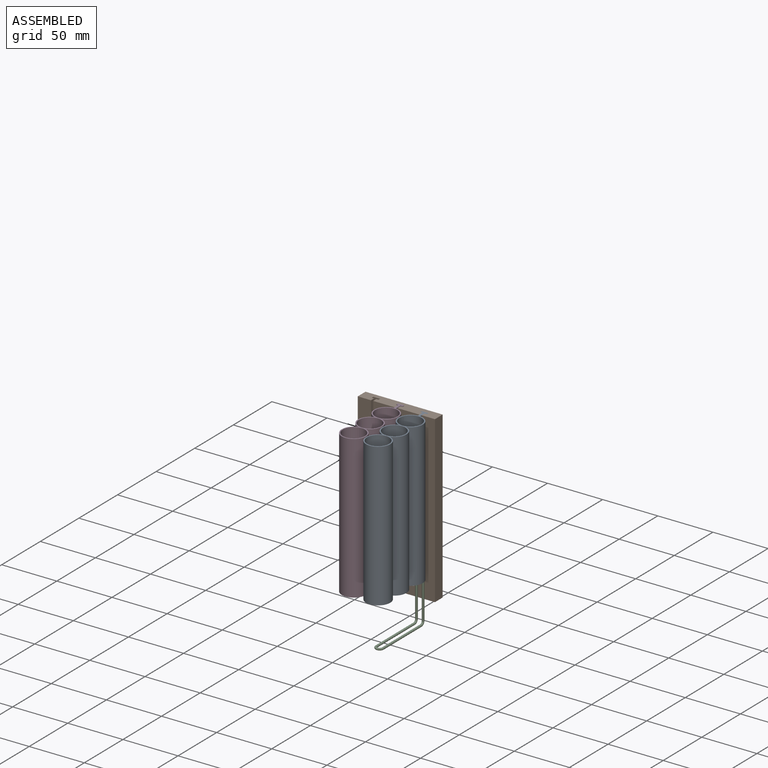
[diagram: assembled view]
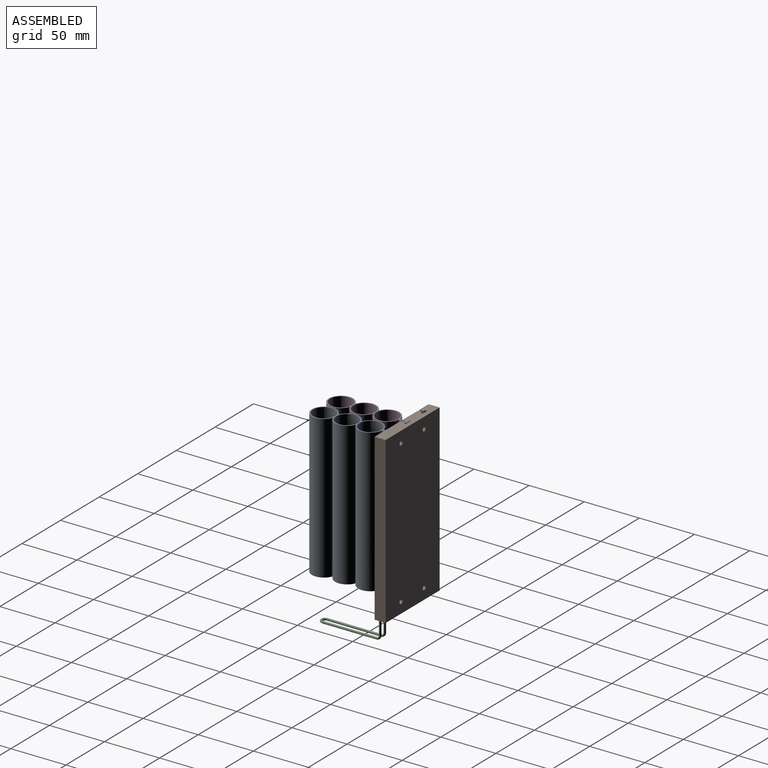
[diagram: assembled view, second angle]
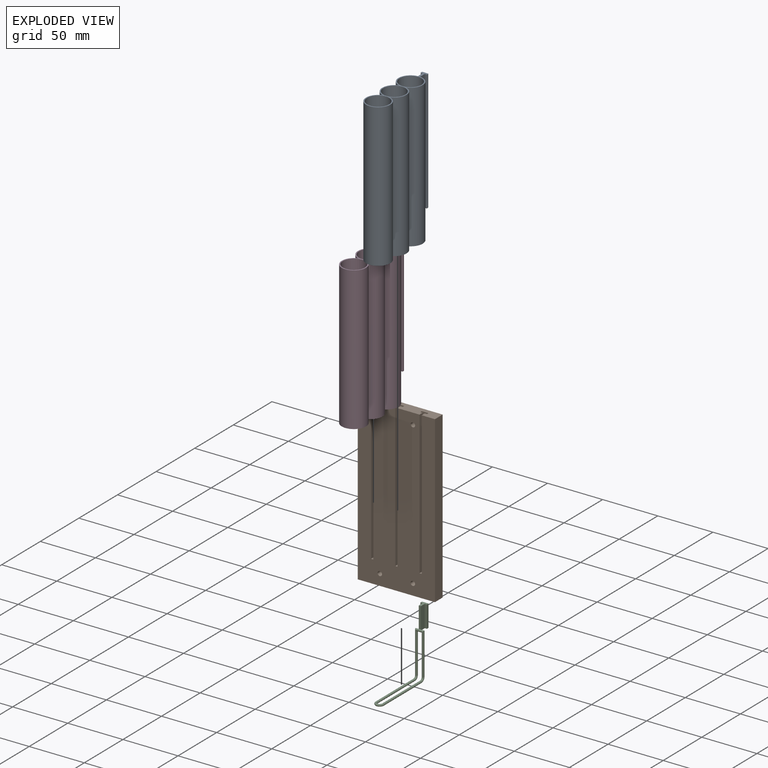
[diagram: exploded view]
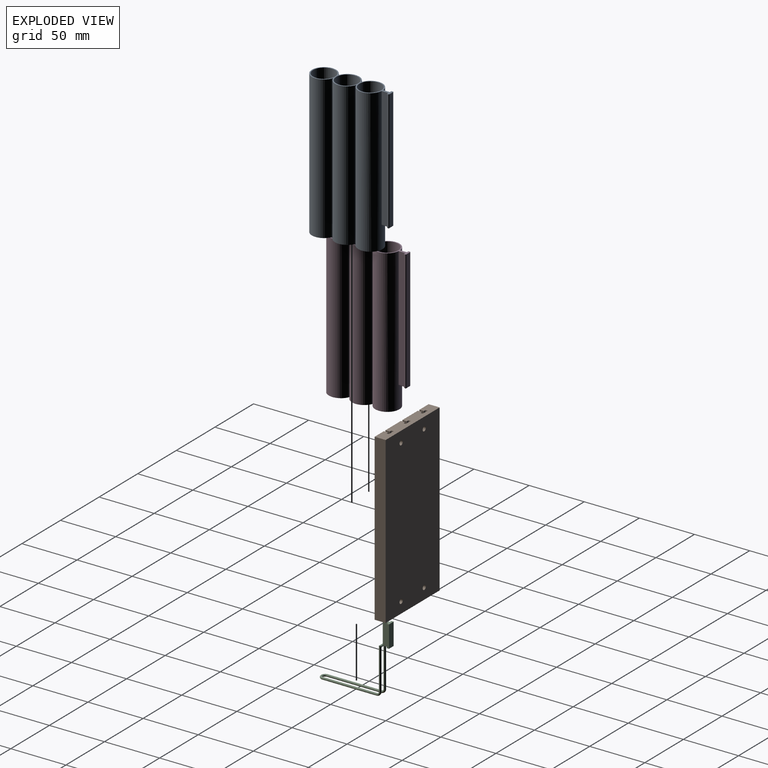
[diagram: exploded view, second angle]
ASSEMBLY  parts=4 mates=3
PART A: 32 faces, bbox 22x72x130 mm
  f0: cylinder r=10mm len=130mm, axis (0,0,1), area 8168.1mm2, adj f2,f3
  f1: cylinder r=11mm len=130mm, axis (0,0,1), area 7899.2mm2, adj f2,f3,f4,f6,f9,f10,f16,f17
  f2: plane 64x22mm, normal (0,0,-1), area 189.1mm2, adj f0,f1,f4,f5,f6,f7,f8
  f3: plane 72x22mm, normal (0,0,1), area 212.8mm2, adj f0,f1,f4,f5,f6,f7,f8,f9
  f4: cylinder r=11mm len=130mm, axis (0,0,1), area 3626.9mm2, adj f1,f2,f3,f8
  f5: cylinder r=10mm len=130mm, axis (0,0,1), area 8168.1mm2, adj f2,f3
  f6: cylinder r=11mm len=130mm, axis (0,0,1), area 3626.9mm2, adj f1,f2,f3,f8
  f7: cylinder r=10mm len=130mm, axis (0,0,1), area 8168.1mm2, adj f2,f3
  f8: cylinder r=11mm len=130mm, axis (0,0,1), area 8119.3mm2, adj f2,f3,f4,f6
  f9: plane 109.6x6.05mm, normal (-1,0,0), area 662.6mm2, adj f1,f3,f15,f26
  f10: plane 109.6x6.05mm, normal (1,0,0), area 662.6mm2, adj f1,f3,f11,f17
  f11: plane 109.6x1.6mm, normal (0,-1,0), area 175.4mm2, adj f3,f10,f18,f19
  f12: plane 109.6x1.2mm, normal (1,0,0), area 131.5mm2, adj f3,f19,f21,f22
  f13: plane 109.6x5.2mm, normal (0,1,0), area 569.9mm2, adj f3,f22,f24,f25
  f14: plane 109.6x1.2mm, normal (-1,0,0), area 131.5mm2, adj f3,f25,f29,f31
  f15: plane 109.6x1.6mm, normal (0,-1,0), area 175.4mm2, adj f3,f9,f28,f31
  f16: plane 7.62x5.2mm, normal (0,0,-1), area 13.9mm2, adj f1,f17,f18,f21,f24,f26,f28,f29
  f17: plane 6.45x0.4mm, normal (0.71,0,-0.71), area 3.5mm2, adj f1,f10,f16,f18
  f18: plane 2x0.4mm, normal (0,-0.71,-0.71), area 1mm2, adj f11,f16,f17,f20
  f19: plane 109.6x0.4mm, normal (0.71,-0.71,0), area 62mm2, adj f3,f11,f12,f20
  f20: plane 0.4x0.4mm, normal (0.58,-0.58,-0.58), area 0.1mm2, adj f18,f19,f21
  f21: plane 1.2x0.4mm, normal (0.71,0,-0.71), area 0.7mm2, adj f12,f16,f20,f23
  f22: plane 109.6x0.4mm, normal (0.71,0.71,0), area 62mm2, adj f3,f12,f13,f23
  f23: plane 0.4x0.4mm, normal (0.58,0.58,-0.58), area 0.1mm2, adj f21,f22,f24
  f24: plane 5.2x0.4mm, normal (0,0.71,-0.71), area 2.9mm2, adj f13,f16,f23,f27
  f25: plane 109.6x0.4mm, normal (-0.71,0.71,0), area 62mm2, adj f3,f13,f14,f27
  f26: plane 6.45x0.4mm, normal (-0.71,0,-0.71), area 3.5mm2, adj f1,f9,f16,f28
  f27: plane 0.4x0.4mm, normal (-0.58,0.58,-0.58), area 0.1mm2, adj f24,f25,f29
  f28: plane 2x0.4mm, normal (0,-0.71,-0.71), area 1mm2, adj f15,f16,f26,f30
  f29: plane 1.2x0.4mm, normal (-0.71,0,-0.71), area 0.7mm2, adj f14,f16,f27,f30
  f30: plane 0.4x0.4mm, normal (-0.58,-0.58,-0.58), area 0.1mm2, adj f28,f29,f31
  f31: plane 109.6x0.4mm, normal (-0.71,-0.71,0), area 62mm2, adj f3,f14,f15,f30
PART B: 34 faces, bbox 70x10x150 mm
  f0: plane 70x10mm, normal (0,0,1), area 640mm2, adj f1,f7,f8,f9,f11,f12,f13,f14
  f1: plane 150x10mm, normal (-1,0,0), area 1500mm2, adj f0,f2,f8,f9
  f2: plane 70x10mm, normal (0,0,-1), area 700mm2, adj f1,f7,f8,f9
  f3: cylinder r=2mm len=10mm, axis (0,-1,0), area 125.7mm2, adj f8,f9
  f4: cylinder r=2mm len=10mm, axis (0,-1,0), area 125.7mm2, adj f8,f9
  f5: cylinder r=2mm len=10mm, axis (0,-1,0), area 125.7mm2, adj f8,f9
  f6: cylinder r=2mm len=10mm, axis (0,-1,0), area 125.7mm2, adj f8,f9
  f7: plane 150x10mm, normal (1,0,0), area 1500mm2, adj f0,f2,f8,f9
  f8: plane 150x70mm, normal (0,1,0), area 10449.7mm2, adj f0,f1,f2,f3,f4,f5,f6,f7
  f9: plane 150x70mm, normal (0,-1,0), area 9669.7mm2, adj f0,f1,f2,f3,f4,f5,f6,f7
  f10: plane 6x6mm, normal (0,0,1), area 20mm2, adj f9,f11,f12,f13,f14,f15,f16,f17
  f11: plane 130x2mm, normal (0,1,0), area 260mm2, adj f0,f10,f12,f16
  f12: plane 130x2mm, normal (1,0,0), area 260mm2, adj f0,f10,f11,f13
  f13: plane 130x6mm, normal (0,-1,0), area 780mm2, adj f0,f10,f12,f14
  f14: plane 130x2mm, normal (-1,0,0), area 260mm2, adj f0,f10,f13,f15
  f15: plane 130x2mm, normal (0,1,0), area 260mm2, adj f0,f10,f14,f17
  f16: plane 130x4mm, normal (1,0,0), area 520mm2, adj f0,f9,f10,f11
  f17: plane 130x4mm, normal (-1,0,0), area 520mm2, adj f0,f9,f10,f15
  f18: plane 6x6mm, normal (0,0,1), area 20mm2, adj f9,f19,f20,f21,f22,f23,f24,f25
  f19: plane 130x2mm, normal (0,1,0), area 260mm2, adj f0,f18,f20,f25
  f20: plane 130x2mm, normal (1,0,0), area 260mm2, adj f0,f18,f19,f21
  f21: plane 130x6mm, normal (0,-1,0), area 780mm2, adj f0,f18,f20,f22
  f22: plane 130x2mm, normal (-1,0,0), area 260mm2, adj f0,f18,f21,f23
  f23: plane 130x2mm, normal (0,1,0), area 260mm2, adj f0,f18,f22,f24
  f24: plane 130x4mm, normal (-1,0,0), area 520mm2, adj f0,f9,f18,f23
  f25: plane 130x4mm, normal (1,0,0), area 520mm2, adj f0,f9,f18,f19
  f26: plane 6x6mm, normal (0,0,1), area 20mm2, adj f9,f27,f28,f29,f30,f31,f32,f33
  f27: plane 130x4mm, normal (-1,0,0), area 520mm2, adj f0,f9,f26,f28
  f28: plane 130x2mm, normal (0,1,0), area 260mm2, adj f0,f26,f27,f29
  f29: plane 130x2mm, normal (-1,0,0), area 260mm2, adj f0,f26,f28,f30
  f30: plane 130x6mm, normal (0,-1,0), area 780mm2, adj f0,f26,f29,f31
  f31: plane 130x2mm, normal (1,0,0), area 260mm2, adj f0,f26,f30,f32
  f32: plane 130x2mm, normal (0,1,0), area 260mm2, adj f0,f26,f31,f33
  f33: plane 130x4mm, normal (1,0,0), area 520mm2, adj f0,f9,f26,f32
PART C: 18 faces, bbox 8.7x64x61.3 mm
  f0: torus R=3mm, axis (0,0,-1), area 59.2mm2, adj f1,f4
  f1: cylinder r=1mm len=49mm, axis (0,1,0), area 307.9mm2, adj f0,f2
  f2: torus R=3mm, axis (1,0,0), area 29.6mm2, adj f1,f3
  f3: cylinder r=1mm len=38.01mm, axis (0,0,1), area 232.5mm2, adj f2,f7
  f4: cylinder r=1mm len=49mm, axis (0,-1,0), area 307.9mm2, adj f0,f5
  f5: torus R=3mm, axis (-1,0,0), area 29.6mm2, adj f4,f6
  f6: cylinder r=1mm len=38mm, axis (0,0,-1), area 232.5mm2, adj f5,f7
  f7: cylinder r=1mm len=8.01mm, axis (1,0,0), area 36mm2, adj f3,f6,f8,f9,f10,f17
  f8: plane 20x5mm, normal (-1,0,0), area 99.8mm2, adj f7,f9,f15,f16,f17
  f9: plane 19.24x2mm, normal (0,-1,0), area 38.5mm2, adj f7,f8,f10,f16
  f10: plane 20x5mm, normal (1,0,0), area 99.8mm2, adj f7,f9,f11,f16,f17
  f11: plane 20x2mm, normal (0,-1,0), area 40mm2, adj f10,f12,f16,f17
  f12: plane 20x2mm, normal (1,0,0), area 40mm2, adj f11,f13,f16,f17
  f13: plane 20x6mm, normal (0,1,0), area 120mm2, adj f12,f14,f16,f17
  f14: plane 20x2mm, normal (-1,0,0), area 40mm2, adj f13,f15,f16,f17
  f15: plane 20x2mm, normal (0,-1,0), area 40mm2, adj f8,f14,f16,f17
  f16: plane 7x6mm, normal (0,0,1), area 22mm2, adj f8,f9,f10,f11,f12,f13,f14,f15
  f17: plane 6.65x6mm, normal (0,0,-1), area 21.3mm2, adj f7,f8,f10,f11,f12,f13,f14,f15
PART D: same geometry as A
PLACE A t=(-13,-12,150)mm
PLACE B t=(-70,-10,0)mm
PLACE C t=(-12.58,-11.65,-20)mm
PLACE D t=(-35,-12,150.5)mm
MATE slider B.f18 <-> D.f16  axis (0,0,1) through (-36,-6,20)mm
MATE slider B.f26 <-> C.f17  axis (0,0,1) through (-14,-6,20)mm
MATE slider C.f16 <-> A.f16  axis (0,0,1) through (-14,-6,40)mm
